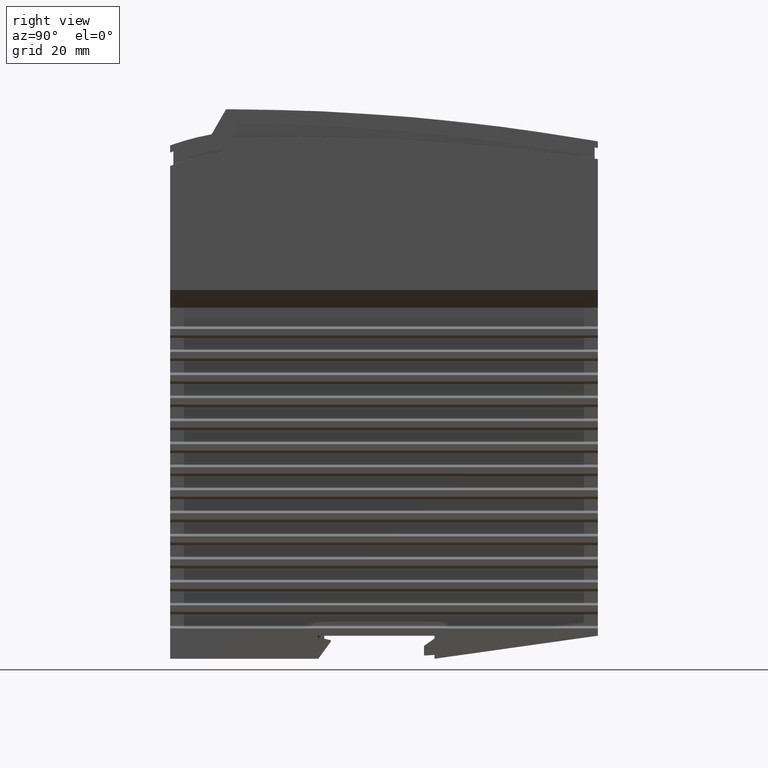
[diagram: clean part render]
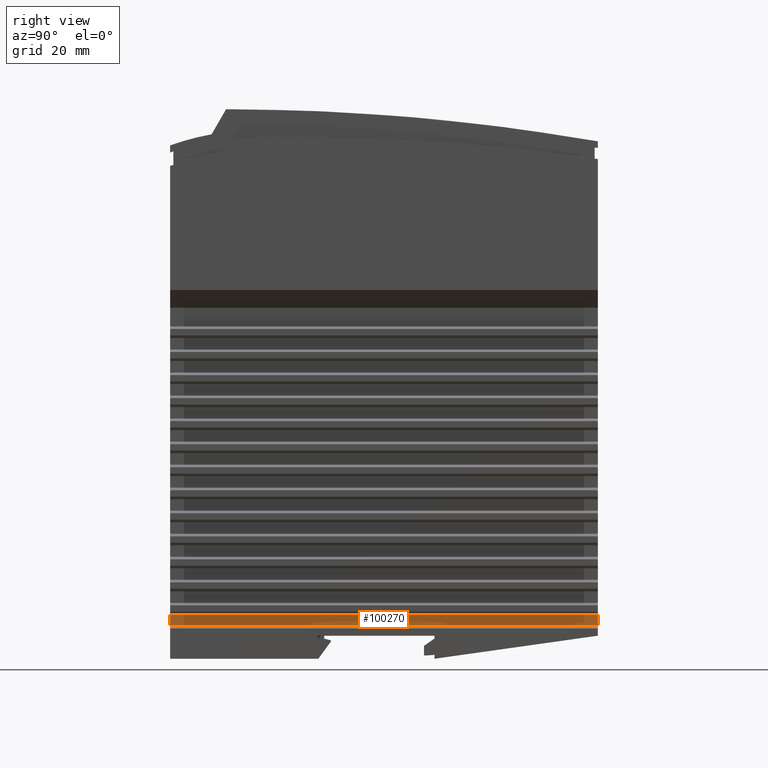
[diagram: same view with one face highlighted and labeled with its STEP entity id]
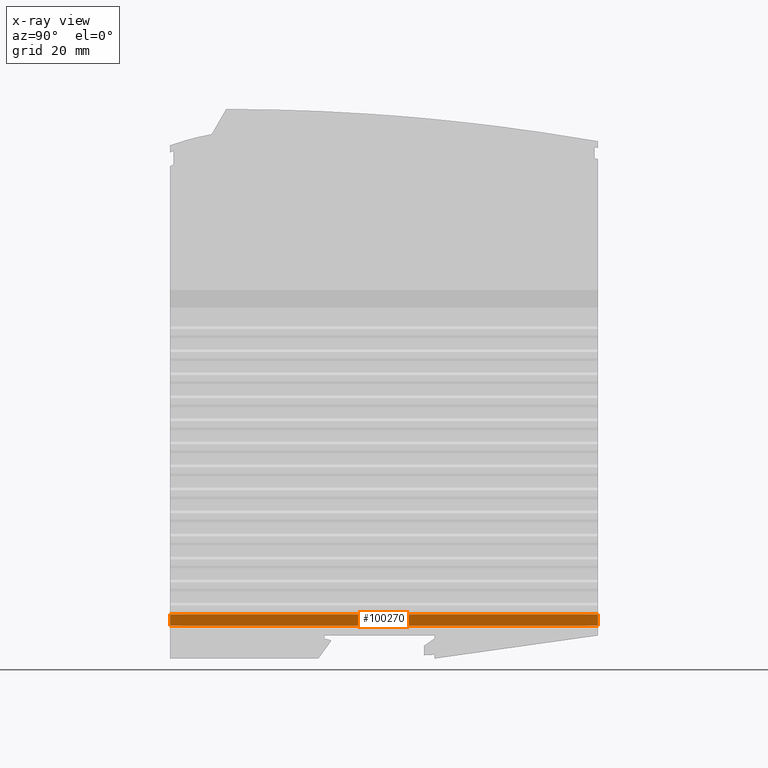
[diagram: x-ray of the same camera — body ghosted, the highlighted face saturated]
A machine part, right view. The second image highlights one B-rep face of the part: STEP entity #100270.
The next image is the same camera in x-ray: the body ghosted, the highlighted face saturated — about 0% of this face is hidden behind the body in this view.
In plain terms, the highlighted planar face has unit normal (-1, 0, 0).
Its self-contained STEP definition (entity closure, byte-faithful):
#62340=CARTESIAN_POINT('',(6.48652858681777,0.,-59.));
#62350=VERTEX_POINT('',#62340);
#62380=CARTESIAN_POINT('',(128.90472881771,0.,-59.));
#62390=DIRECTION('',(-1.,0.,0.));
#62400=VECTOR('',#62390,1.);
#62410=LINE('',#62380,#62400);
#62420=CARTESIAN_POINT('',(3.00000000000031,0.,-59.));
#62430=VERTEX_POINT('',#62420);
#62440=EDGE_CURVE('',#62350,#62430,#62410,.T.);
#82430=CARTESIAN_POINT('',(3.00000000000031,130.,-59.));
#82440=VERTEX_POINT('',#82430);
#82470=CARTESIAN_POINT('',(128.90472881771,130.,-59.));
#82480=DIRECTION('',(-1.,0.,0.));
#82490=VECTOR('',#82480,1.);
#82500=LINE('',#82470,#82490);
#82510=CARTESIAN_POINT('',(6.48652858681777,130.,-59.));
#82520=VERTEX_POINT('',#82510);
#82530=EDGE_CURVE('',#82520,#82440,#82500,.T.);
#99990=CARTESIAN_POINT('',(3.00000000000031,-13.0000024000001,-59.));
#100000=DIRECTION('',(0.,1.,0.));
#100010=VECTOR('',#100000,1.);
#100020=LINE('',#99990,#100010);
#100030=EDGE_CURVE('',#62430,#82440,#100020,.T.);
#100110=CARTESIAN_POINT('',(6.48652858681777,-13.0000024000001,-59.));
#100120=DIRECTION('',(0.,0.,1.));
#100130=DIRECTION('',(-1.,0.,0.));
#100140=AXIS2_PLACEMENT_3D('',#100110,#100120,#100130);
#100150=PLANE('',#100140);
#100160=ORIENTED_EDGE('',*,*,#100030,.T.);
#100170=ORIENTED_EDGE('',*,*,#62440,.T.);
#100180=CARTESIAN_POINT('',(6.48652858681777,-13.0000024000001,-59.));
#100190=DIRECTION('',(0.,1.,0.));
#100200=VECTOR('',#100190,1.);
#100210=LINE('',#100180,#100200);
#100220=EDGE_CURVE('',#62350,#82520,#100210,.T.);
#100230=ORIENTED_EDGE('',*,*,#100220,.F.);
#100240=ORIENTED_EDGE('',*,*,#82530,.F.);
#100250=EDGE_LOOP('',(#100240,#100230,#100170,#100160));
#100260=FACE_OUTER_BOUND('',#100250,.T.);
#100270=ADVANCED_FACE('',(#100260),#100150,.F.);